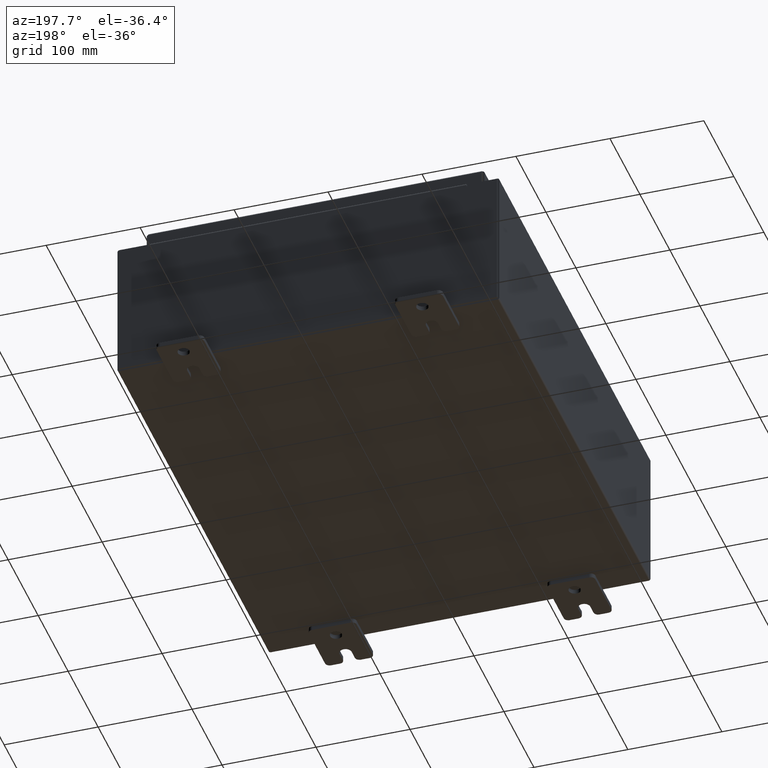
[diagram: clean part render]
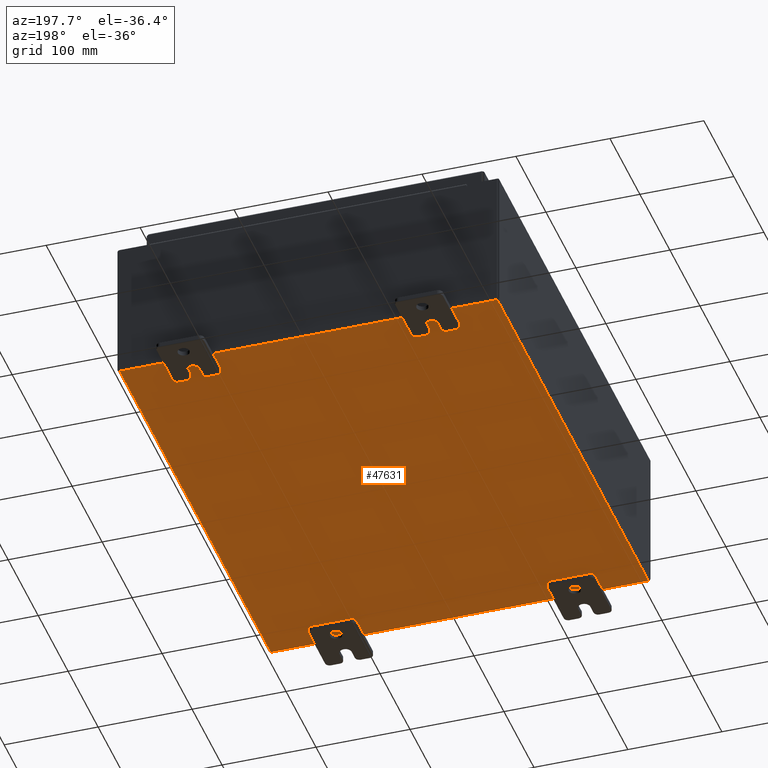
[diagram: same view with one face highlighted and labeled with its STEP entity id]
A machine part, auxiliary view. The second image highlights one B-rep face of the part: STEP entity #47631.
In plain terms, the highlighted planar face has unit normal (0, 0, -1).
Its self-contained STEP definition (entity closure, byte-faithful):
#663 = PLANE ( 'NONE',  #91233 ) ;
#3341 = EDGE_CURVE ( 'NONE', #36181, #67931, #11610, .T. ) ;
#5193 = EDGE_CURVE ( 'NONE', #73031, #8286, #6162, .T. ) ;
#6162 = LINE ( 'NONE', #91441, #50941 ) ;
#8286 = VERTEX_POINT ( 'NONE', #80332 ) ;
#11610 = LINE ( 'NONE', #84715, #93434 ) ;
#12273 = EDGE_LOOP ( 'NONE', ( #78852, #40465, #77184, #79934 ) ) ;
#26625 = CARTESIAN_POINT ( 'NONE',  ( 7.912300000000001900, 9.925299999999998200, -0.07469999999999994700 ) ) ;
#32457 = DIRECTION ( 'NONE',  ( 1.000000000000000000, 0.0000000000000000000, 0.0000000000000000000 ) ) ;
#34189 = DIRECTION ( 'NONE',  ( 0.0000000000000000000, 0.0000000000000000000, -1.000000000000000000 ) ) ;
#34412 = FACE_OUTER_BOUND ( 'NONE', #12273, .T. ) ;
#36181 = VERTEX_POINT ( 'NONE', #57355 ) ;
#37619 = CARTESIAN_POINT ( 'NONE',  ( -7.912299999999997400, 9.925299999999998200, -0.07470000000000000300 ) ) ;
#40465 = ORIENTED_EDGE ( 'NONE', *, *, #45060, .T. ) ;
#40693 = DIRECTION ( 'NONE',  ( -0.0000000000000000000, 1.000000000000000000, -0.0000000000000000000 ) ) ;
#41264 = CARTESIAN_POINT ( 'NONE',  ( -7.912299999999997400, -9.925300000000000000, -0.07469999999999994700 ) ) ;
#42625 = DIRECTION ( 'NONE',  ( -1.000000000000000000, -0.0000000000000000000, -0.0000000000000000000 ) ) ;
#42648 = CARTESIAN_POINT ( 'NONE',  ( 0.0000000000000000000, 0.0000000000000000000, -0.07470000000000000300 ) ) ;
#43472 = LINE ( 'NONE', #91234, #108149 ) ;
#45060 = EDGE_CURVE ( 'NONE', #73031, #67931, #43472, .T. ) ;
#47631 = ADVANCED_FACE ( 'NONE', ( #34412 ), #663, .T. ) ;
#50941 = VECTOR ( 'NONE', #32457, 39.37007874015748100 ) ;
#53225 = VECTOR ( 'NONE', #69029, 39.37007874015748100 ) ;
#57355 = CARTESIAN_POINT ( 'NONE',  ( 7.912300000000001900, 9.925299999999996500, -0.07469999999999994700 ) ) ;
#57376 = EDGE_CURVE ( 'NONE', #36181, #8286, #78388, .T. ) ;
#59611 = DIRECTION ( 'NONE',  ( -1.000000000000000000, 0.0000000000000000000, -0.0000000000000000000 ) ) ;
#67931 = VERTEX_POINT ( 'NONE', #37619 ) ;
#69029 = DIRECTION ( 'NONE',  ( -0.0000000000000000000, -1.000000000000000000, -0.0000000000000000000 ) ) ;
#73031 = VERTEX_POINT ( 'NONE', #41264 ) ;
#77184 = ORIENTED_EDGE ( 'NONE', *, *, #3341, .F. ) ;
#78388 = LINE ( 'NONE', #26625, #53225 ) ;
#78852 = ORIENTED_EDGE ( 'NONE', *, *, #5193, .F. ) ;
#79934 = ORIENTED_EDGE ( 'NONE', *, *, #57376, .T. ) ;
#80332 = CARTESIAN_POINT ( 'NONE',  ( 7.912300000000001900, -9.925300000000001800, -0.07470000000000000300 ) ) ;
#84715 = CARTESIAN_POINT ( 'NONE',  ( -7.999999999999997300, 9.925299999999998200, -0.07470000000000000300 ) ) ;
#91233 = AXIS2_PLACEMENT_3D ( 'NONE', #42648, #34189, #59611 ) ;
#91234 = CARTESIAN_POINT ( 'NONE',  ( -7.912299999999997400, -9.925300000000001800, -0.07469999999999994700 ) ) ;
#91441 = CARTESIAN_POINT ( 'NONE',  ( -7.999999999999997300, -9.925300000000001800, -0.07470000000000000300 ) ) ;
#93434 = VECTOR ( 'NONE', #42625, 39.37007874015748100 ) ;
#108149 = VECTOR ( 'NONE', #40693, 39.37007874015748100 ) ;